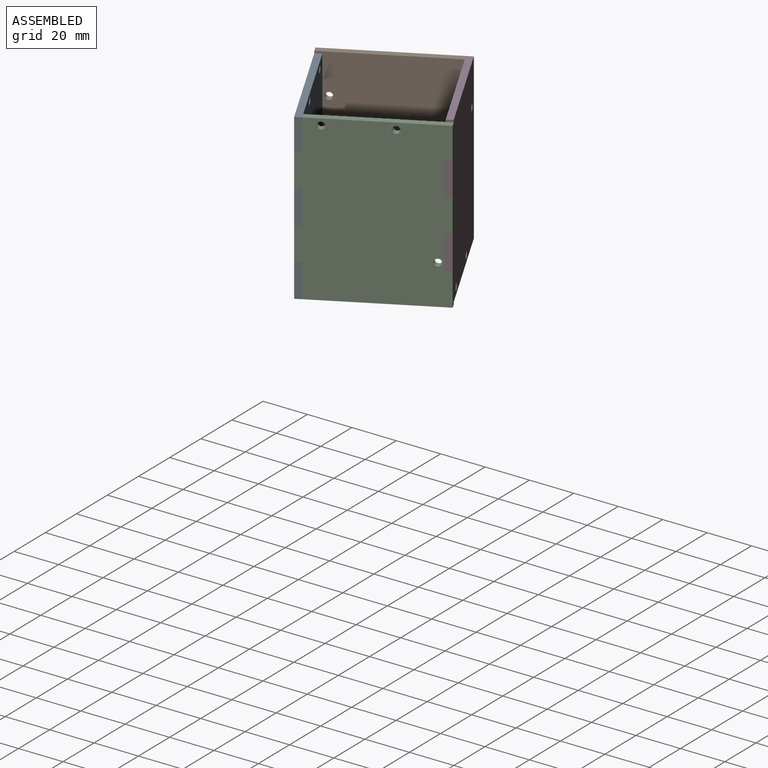
[diagram: assembled view]
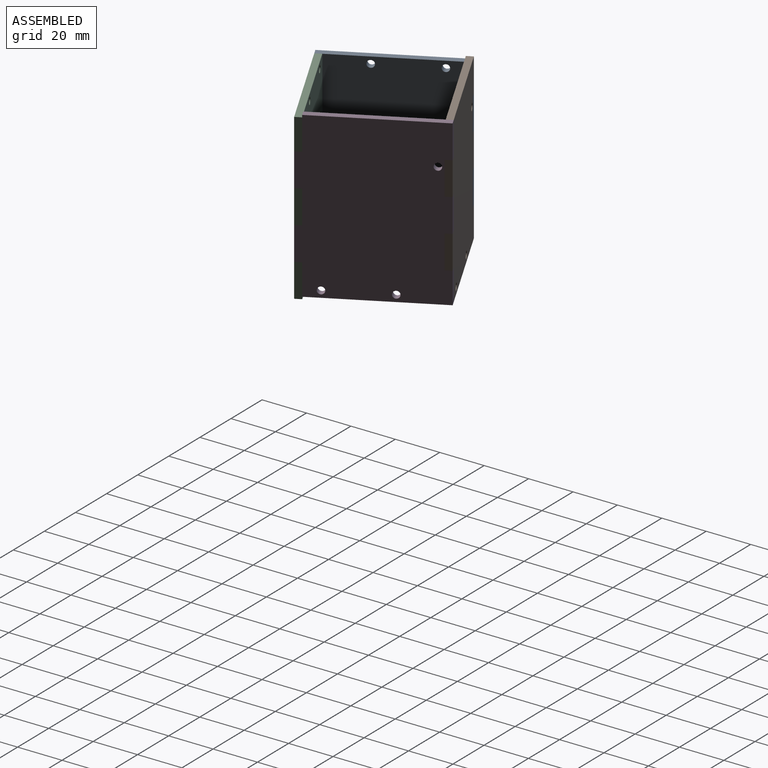
[diagram: assembled view, second angle]
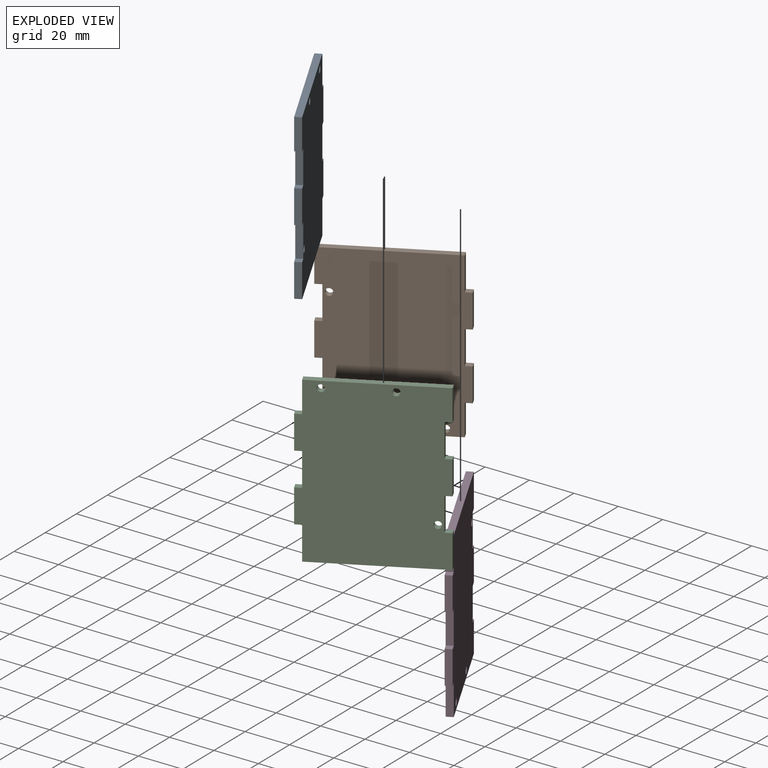
[diagram: exploded view]
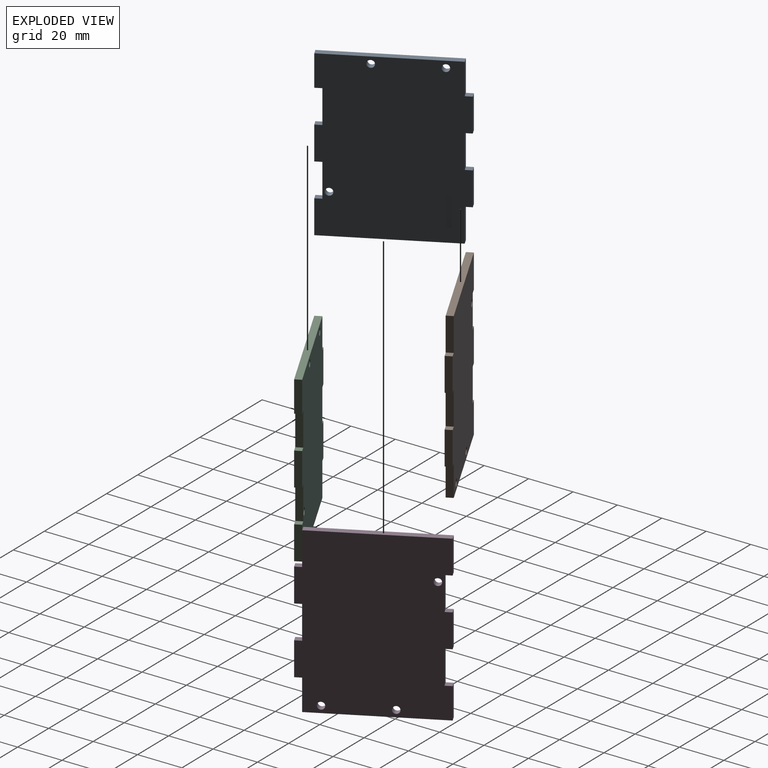
[diagram: exploded view, second angle]
ASSEMBLY  parts=4 mates=3
PART A: 25 faces, bbox 74x59x3 mm
  f0: plane 56x3mm, normal (-1,0,0), area 168mm2, adj f1,f22,f23,f24
  f1: plane 15x3mm, normal (0,-1,0), area 45mm2, adj f0,f2,f23,f24
  f2: plane 3x3mm, normal (-1,0,0), area 9mm2, adj f1,f3,f23,f24
  f3: plane 15x3mm, normal (0,-1,0), area 45mm2, adj f2,f4,f23,f24
  f4: plane 3x3mm, normal (1,0,0), area 9mm2, adj f3,f5,f23,f24
  f5: plane 15x3mm, normal (0,-1,0), area 45mm2, adj f4,f6,f23,f24
  f6: plane 3x3mm, normal (-1,0,0), area 9mm2, adj f5,f7,f23,f24
  f7: plane 15x3mm, normal (0,-1,0), area 45mm2, adj f6,f8,f23,f24
  f8: plane 3x3mm, normal (1,0,0), area 9mm2, adj f7,f9,f23,f24
  f9: plane 14x3mm, normal (0,-1,0), area 42mm2, adj f8,f10,f23,f24
  f10: plane 56x3mm, normal (1,0,0), area 168mm2, adj f9,f11,f23,f24
  f11: plane 14x3mm, normal (0,1,0), area 42mm2, adj f10,f12,f23,f24
  f12: plane 3x3mm, normal (-1,0,0), area 9mm2, adj f11,f13,f23,f24
  f13: plane 15x3mm, normal (0,1,0), area 45mm2, adj f12,f14,f23,f24
  f14: plane 3x3mm, normal (1,0,0), area 9mm2, adj f13,f15,f23,f24
  f15: plane 15x3mm, normal (0,1,0), area 45mm2, adj f14,f16,f23,f24
  f16: plane 3x3mm, normal (-1,0,0), area 9mm2, adj f15,f17,f23,f24
  f17: plane 15x3mm, normal (0,1,0), area 45mm2, adj f16,f18,f23,f24
  f18: plane 3x3mm, normal (1,0,0), area 9mm2, adj f17,f22,f23,f24
  f19: cylinder r=1.6mm len=3.2mm, axis (0,0,-1), area 30.2mm2, adj f23,f24
  f20: cylinder r=1.6mm len=3.2mm, axis (0,0,-1), area 30.2mm2, adj f23,f24
  f21: cylinder r=1.6mm len=3.2mm, axis (0,0,-1), area 30.2mm2, adj f23,f24
  f22: plane 15x3mm, normal (0,1,0), area 45mm2, adj f0,f18,f23,f24
  f23: plane 74x59mm, normal (0,0,1), area 4119.9mm2, adj f0,f1,f2,f3,f4,f5,f6,f7
  f24: plane 74x59mm, normal (0,0,-1), area 4119.9mm2, adj f0,f1,f2,f3,f4,f5,f6,f7
PART B: same geometry as A
PART C: same geometry as A
PART D: same geometry as A
PLACE A rot(axis=(-0.7,-0.17,-0.7),160.7deg) t=(93.72,147.34,77.9)mm
PLACE B rot(axis=(-0.65,0.4,0.65),136.9deg) t=(107.73,184.44,78.9)mm
PLACE C rot(axis=(-0.46,-0.76,-0.46),105.7deg) t=(133.48,134.71,77.9)mm
PLACE D rot(axis=(-0.23,0.95,0.23),93.2deg) t=(143.45,173.09,78.9)mm
MATE fastened C.f8 <-> A.f12  axis (0,0,1) through (107.93,123.17,100.9)mm
MATE fastened B.f12 <-> A.f2  axis (0,0,1) through (82.18,172.9,55.9)mm
MATE fastened B.f2 <-> D.f18  axis (0,0,1) through (131.91,198.65,100.9)mm
